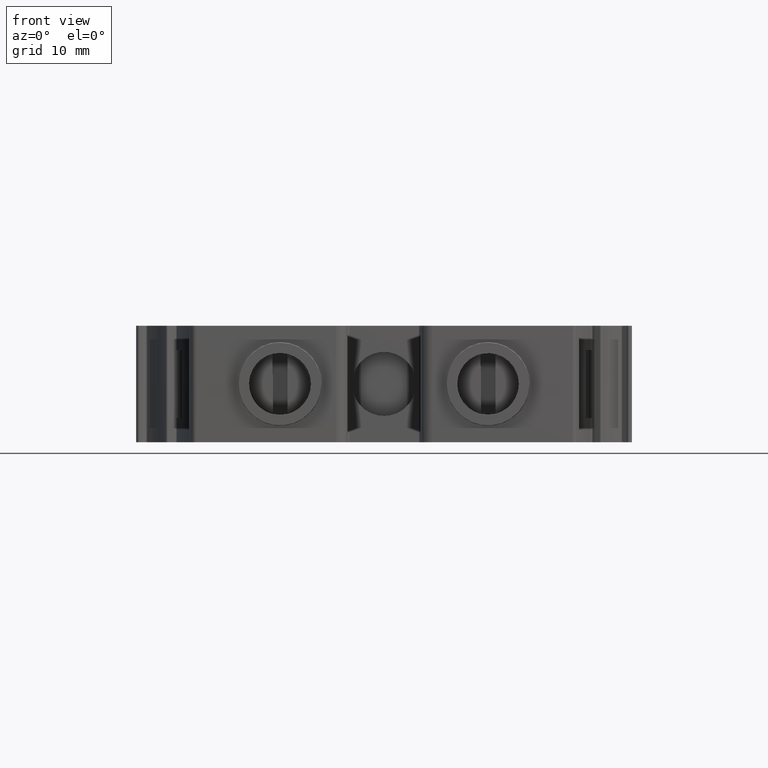
[diagram: clean part render]
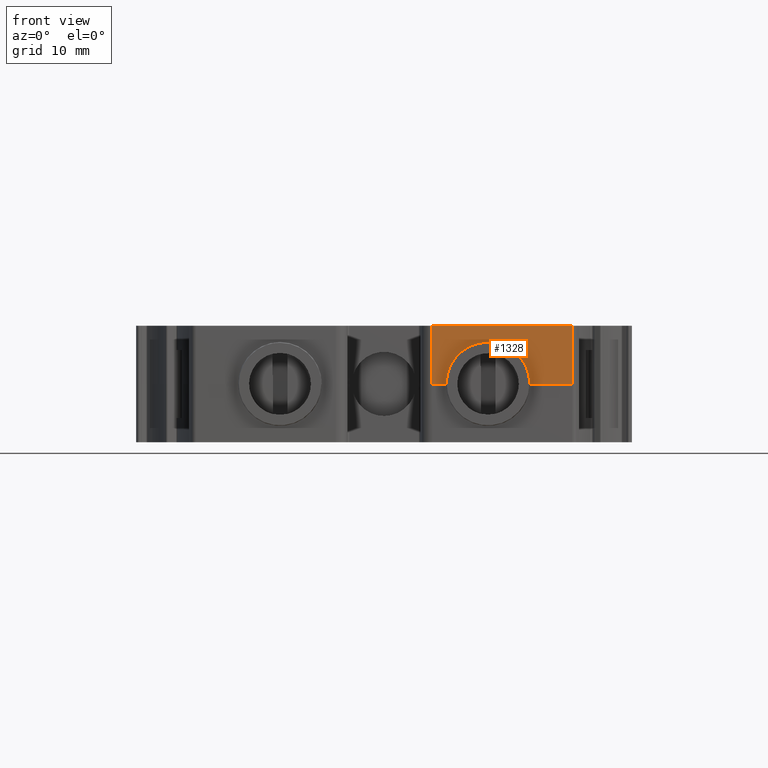
[diagram: same view with one face highlighted and labeled with its STEP entity id]
A machine part, front view. The second image highlights one B-rep face of the part: STEP entity #1328.
In plain terms, the highlighted planar face has unit normal (0, -1, 0).
Its self-contained STEP definition (entity closure, byte-faithful):
#54 = AXIS2_PLACEMENT_3D ( 'NONE', #18161, #18164, #18167 ) ;
#1328 = ADVANCED_FACE ( 'NONE', ( #18190 ), #18183, .T. ) ;
#1849 = EDGE_CURVE ( 'NONE', #19932, #19970, #21704, .T. ) ;
#2506 = VECTOR ( 'NONE', #13824, 1000.000000000000000 ) ;
#4675 = DIRECTION ( 'NONE',  ( -1.000000000000000000, -0.0000000000000000000, -0.0000000000000000000 ) ) ;
#4678 = CARTESIAN_POINT ( 'NONE',  ( -99.22046098691750200, 199.9292942463478400, -142.5330871800812200 ) ) ;
#4691 = CARTESIAN_POINT ( 'NONE',  ( -106.1707311580430000, 199.9292942463476900, -142.5330871800804600 ) ) ;
#4694 = LINE ( 'NONE', #4699, #22112 ) ;
#4699 = CARTESIAN_POINT ( 'NONE',  ( -103.1673053482356000, 199.9292966523012800, -142.5330871800800300 ) ) ;
#4706 = LINE ( 'NONE', #4691, #22085 ) ;
#4708 = DIRECTION ( 'NONE',  ( 0.0000000000000000000, -3.225483217177965800E-014, -1.000000000000000000 ) ) ;
#4716 = DIRECTION ( 'NONE',  ( -0.0000000000000000000, 3.391362850708514900E-014, 1.000000000000000000 ) ) ;
#4717 = DIRECTION ( 'NONE',  ( 1.000000000000000000, 1.779906783249607500E-014, -6.036309742436812100E-028 ) ) ;
#4718 = DIRECTION ( 'NONE',  ( -1.779906783249607500E-014, 1.000000000000000000, -3.391362850708514900E-014 ) ) ;
#4721 = CARTESIAN_POINT ( 'NONE',  ( -90.57629027879680500, 199.9292942463457900, -207.5190868334354900 ) ) ;
#5381 = CARTESIAN_POINT ( 'NONE',  ( -104.9706846598622900, 199.9292954493245100, -142.5330871800807400 ) ) ;
#5387 = CARTESIAN_POINT ( 'NONE',  ( -94.91773578749480600, 199.9292943581859800, -142.5330871800802300 ) ) ;
#5414 = CARTESIAN_POINT ( 'NONE',  ( -90.57629027879680500, 199.9292942463480400, -142.5330871800808300 ) ) ;
#5834 = LINE ( 'NONE', #4721, #22074 ) ;
#8566 = VERTEX_POINT ( 'NONE', #5387 ) ;
#8629 = VERTEX_POINT ( 'NONE', #5381 ) ;
#8669 = VERTEX_POINT ( 'NONE', #5414 ) ;
#13107 = VECTOR ( 'NONE', #20806, 1000.000000000000000 ) ;
#13824 = DIRECTION ( 'NONE',  ( 1.000000000000000000, 0.0000000000000000000, -1.024210827134004000E-013 ) ) ;
#13833 = CARTESIAN_POINT ( 'NONE',  ( -90.57629027879620800, 199.9292942463479800, -136.5349759835345700 ) ) ;
#13842 = LINE ( 'NONE', #13833, #2506 ) ;
#14935 = EDGE_CURVE ( 'NONE', #8669, #18734, #5834, .T. ) ;
#14937 = EDGE_CURVE ( 'NONE', #8566, #8669, #4706, .T. ) ;
#14939 = EDGE_CURVE ( 'NONE', #19970, #8566, #22095, .T. ) ;
#14943 = EDGE_CURVE ( 'NONE', #19932, #8629, #4694, .T. ) ;
#15492 = EDGE_CURVE ( 'NONE', #18757, #18734, #13842, .T. ) ;
#15794 = EDGE_CURVE ( 'NONE', #18757, #8629, #20790, .T. ) ;
#17657 = DIRECTION ( 'NONE',  ( 0.0000000000000000000, -3.225483217177965800E-014, -1.000000000000000000 ) ) ;
#17683 = DIRECTION ( 'NONE',  ( -1.779906783249607500E-014, 1.000000000000000000, -3.391362850708514900E-014 ) ) ;
#17697 = CARTESIAN_POINT ( 'NONE',  ( -99.22046098691750200, 199.9292942463478400, -142.5330871800812200 ) ) ;
#18161 = CARTESIAN_POINT ( 'NONE',  ( -106.1707311580430000, 199.9292942463455100, -207.5190868334354900 ) ) ;
#18164 = DIRECTION ( 'NONE',  ( 1.779906783249607500E-014, -1.000000000000000000, 3.391362850708514900E-014 ) ) ;
#18167 = DIRECTION ( 'NONE',  ( 0.0000000000000000000, -3.391362850708514900E-014, -1.000000000000000000 ) ) ;
#18183 = PLANE ( 'NONE',  #54 ) ;
#18190 = FACE_OUTER_BOUND ( 'NONE', #22797, .T. ) ;
#18734 = VERTEX_POINT ( 'NONE', #20953 ) ;
#18757 = VERTEX_POINT ( 'NONE', #20957 ) ;
#19932 = VERTEX_POINT ( 'NONE', #20120 ) ;
#19970 = VERTEX_POINT ( 'NONE', #20066 ) ;
#20066 = CARTESIAN_POINT ( 'NONE',  ( -99.22046098691750200, 199.9292942463479800, -138.2305418331064000 ) ) ;
#20120 = CARTESIAN_POINT ( 'NONE',  ( -103.5230063653900200, 199.9292954492887300, -142.5330871800802300 ) ) ;
#20790 = LINE ( 'NONE', #20791, #13107 ) ;
#20791 = CARTESIAN_POINT ( 'NONE',  ( -104.9706846598620000, 199.9292942463455300, -207.5190868334354900 ) ) ;
#20806 = DIRECTION ( 'NONE',  ( 0.0000000000000000000, -3.391362850708514900E-014, -1.000000000000000000 ) ) ;
#20953 = CARTESIAN_POINT ( 'NONE',  ( -90.57629027879629300, 199.9292942463483800, -136.5349759835345700 ) ) ;
#20957 = CARTESIAN_POINT ( 'NONE',  ( -104.9706846598619700, 199.9292942463479800, -136.5349759835330300 ) ) ;
#21704 = CIRCLE ( 'NONE', #21705, 4.302545346974828700 ) ;
#21705 = AXIS2_PLACEMENT_3D ( 'NONE', #17697, #17683, #17657 ) ;
#22074 = VECTOR ( 'NONE', #4716, 1000.000000000000000 ) ;
#22085 = VECTOR ( 'NONE', #4717, 1000.000000000000000 ) ;
#22095 = CIRCLE ( 'NONE', #22096, 4.302545346974828700 ) ;
#22096 = AXIS2_PLACEMENT_3D ( 'NONE', #4678, #4718, #4708 ) ;
#22112 = VECTOR ( 'NONE', #4675, 1000.000000000000000 ) ;
#22316 = ORIENTED_EDGE ( 'NONE', *, *, #1849, .T. ) ;
#22318 = ORIENTED_EDGE ( 'NONE', *, *, #15794, .T. ) ;
#22327 = ORIENTED_EDGE ( 'NONE', *, *, #14935, .T. ) ;
#22339 = ORIENTED_EDGE ( 'NONE', *, *, #14937, .T. ) ;
#22343 = ORIENTED_EDGE ( 'NONE', *, *, #15492, .F. ) ;
#22347 = ORIENTED_EDGE ( 'NONE', *, *, #14943, .F. ) ;
#22357 = ORIENTED_EDGE ( 'NONE', *, *, #14939, .T. ) ;
#22797 = EDGE_LOOP ( 'NONE', ( #22347, #22316, #22357, #22339, #22327, #22343, #22318 ) ) ;